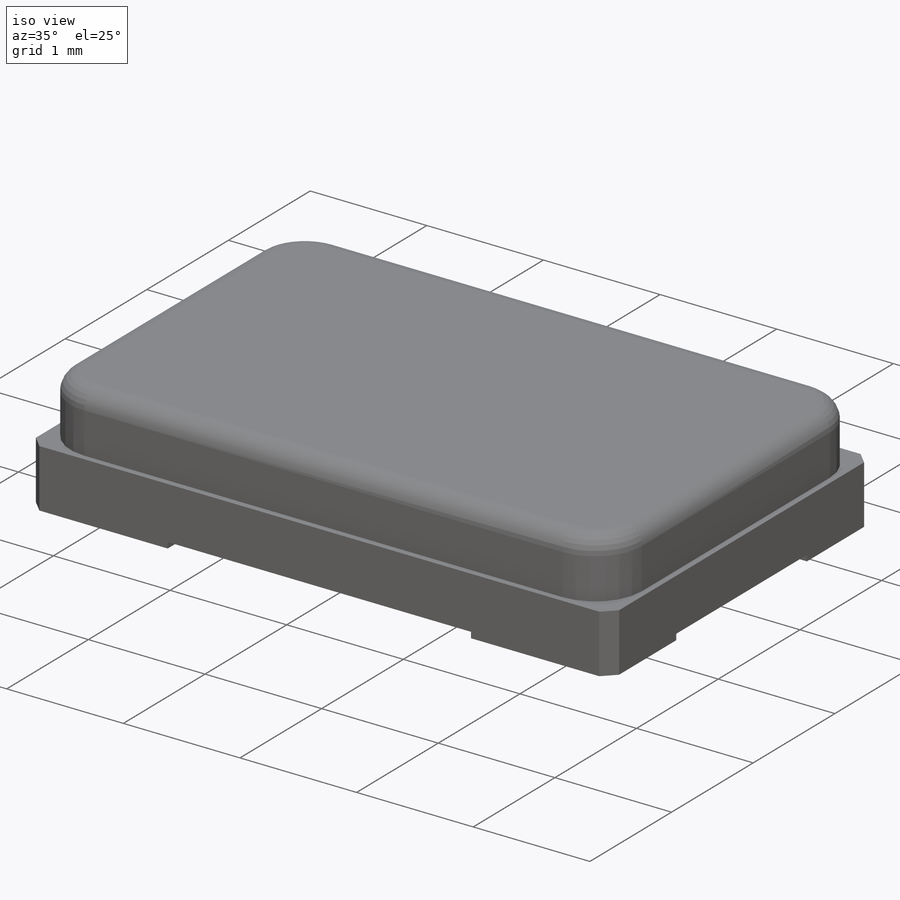
[diagram: iso view]
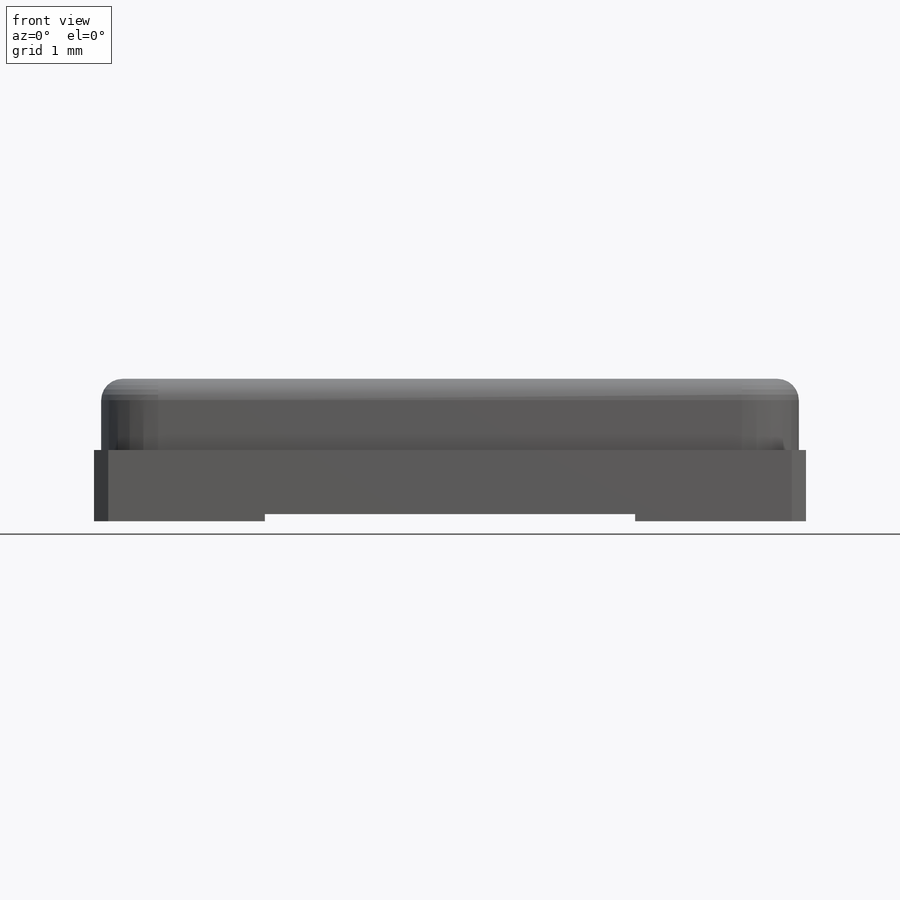
[diagram: front view]
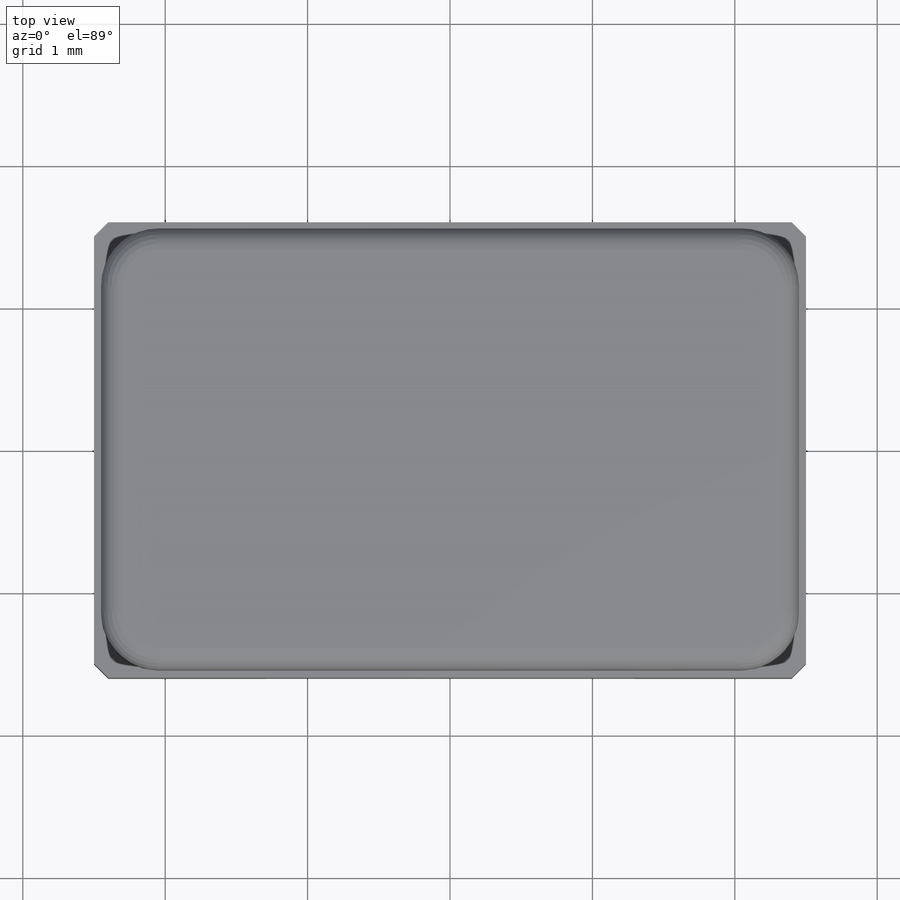
[diagram: top view]
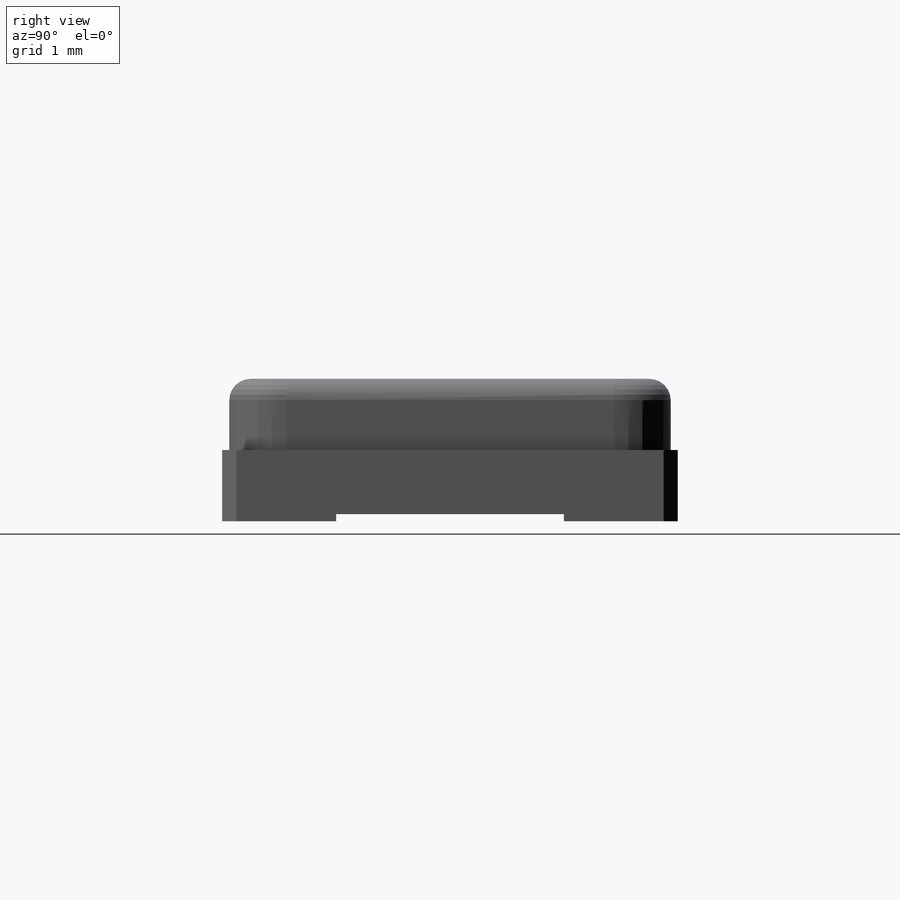
[diagram: right view]
SOLIDWORKS PART (.sldprt)
format: sldprt  version: not decoded by parser v0  size: 262,656 bytes
history: native  units: mm
features: sketch x4, extrude x3, fillet x2, material x1 (+13 scaffold rows collapsed)
feature tree (23):
  scaffold x13  (default folders/planes/origin — collapsed)
  material  "Material <not specified>"
  sketch  "Sketch1"  dims[D1=5.0mm D2=3.2mm]
  sketch  "Sketch2"  dims[c1.D1=0.1mm c1.D2=0.1mm c2.D1=0.05mm c2.D2=0.05mm]
  extrude  "Boss-Extrude2"  Depth=0.5mm
  fillet  "Fillet3"  Radius=0.15mm
  fillet  "Fillet4"  Radius=0.4mm
  sketch  "Sketch4"  dims[D1=1.2mm D2=0.8mm]
  extrude  "Boss-Extrude3"  Depth=0.5mm
  sketch  "Sketch6"
  extrude  "Boss-Extrude5"  Depth=0.45mm
decode coverage: 8 of 9 modeling features carry decoded parameters
note: suppression state not decoded; provenance and decode notes live in map.json
